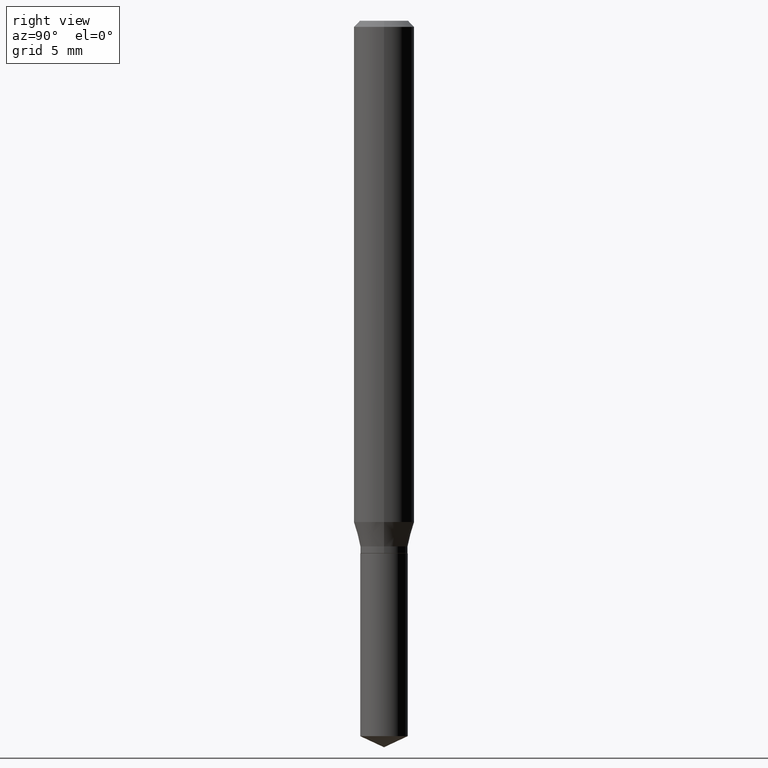
[diagram: clean part render]
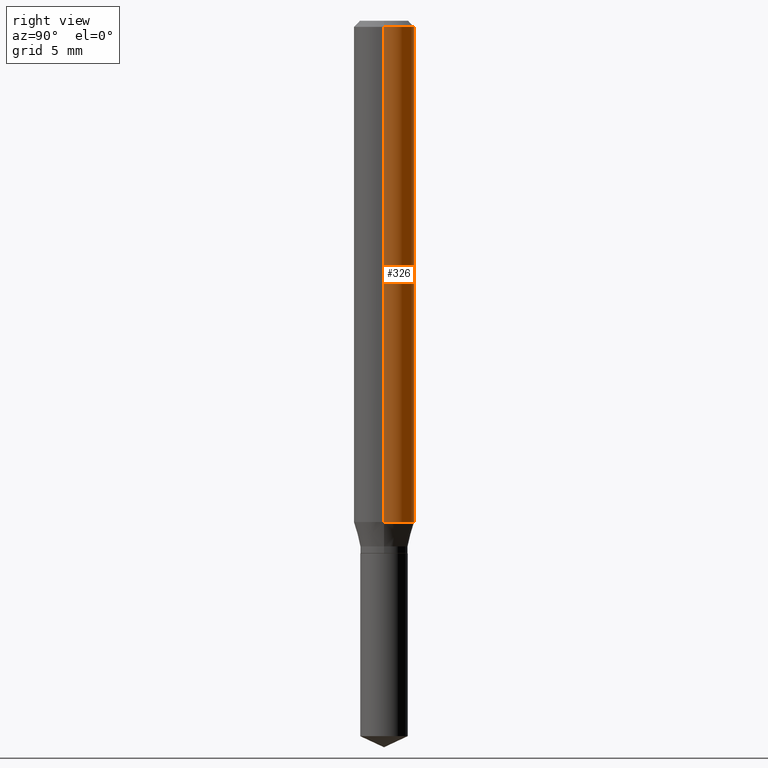
[diagram: same view with one face highlighted and labeled with its STEP entity id]
A machine part, right view. The second image highlights one B-rep face of the part: STEP entity #326.
In plain terms, the highlighted cylindrical surface (edge-blend (fillet) strip) has radius 1.5875 mm, axis along (-0, 0, 1).
Its self-contained STEP definition (entity closure, byte-faithful):
#3 = DIRECTION ( 'NONE',  ( -2.445468806185136877E-29, 3.491481338843145188E-15, 1.000000000000000000 ) ) ;
#15 = DIRECTION ( 'NONE',  ( 1.000000000000000000, -6.982962677686266711E-15, 0.000000000000000000 ) ) ;
#19 = CARTESIAN_POINT ( 'NONE',  ( 3.056836007731442729E-31, -4.364351673553962300E-17, -0.01250000000000008916 ) ) ;
#21 = ORIENTED_EDGE ( 'NONE', *, *, #423, .F. ) ;
#29 = AXIS2_PLACEMENT_3D ( 'NONE', #19, #131, #15 ) ;
#57 = CARTESIAN_POINT ( 'NONE',  ( 0.06250000000000000000, -4.800786840909313294E-16, -0.01250000000000008916 ) ) ;
#64 = CIRCLE ( 'NONE', #29, 0.06250000000000000000 ) ;
#78 = DIRECTION ( 'NONE',  ( -2.445468806185136877E-29, 3.491481338843145188E-15, 1.000000000000000000 ) ) ;
#83 = DIRECTION ( 'NONE',  ( -2.445468806185136597E-29, 3.491481338843145583E-15, 1.000000000000000000 ) ) ;
#87 = CARTESIAN_POINT ( 'NONE',  ( -0.06250000000000000000, -1.384429793226810224E-15, -0.01250000000000008916 ) ) ;
#92 = VECTOR ( 'NONE', #3, 39.37007874015748143 ) ;
#102 = ORIENTED_EDGE ( 'NONE', *, *, #487, .F. ) ;
#126 = ORIENTED_EDGE ( 'NONE', *, *, #490, .T. ) ;
#131 = DIRECTION ( 'NONE',  ( -2.445468806185136597E-29, 3.491481338843145583E-15, 1.000000000000000000 ) ) ;
#148 = CARTESIAN_POINT ( 'NONE',  ( -0.06250000000000012490, -3.169305279568144687E-15, -1.034917314097819840 ) ) ;
#224 = DIRECTION ( 'NONE',  ( 1.000000000000000000, -6.982962677686264344E-15, 0.000000000000000000 ) ) ;
#229 = LINE ( 'NONE', #233, #294 ) ;
#233 = CARTESIAN_POINT ( 'NONE',  ( 0.06250000000000006939, -4.364351673553921624E-16, 3.047610484872463374E-30 ) ) ;
#234 = DIRECTION ( 'NONE',  ( 1.000000000000000000, -6.982962677686266711E-15, 4.876176775795935793E-29 ) ) ;
#251 = VERTEX_POINT ( 'NONE', #87 ) ;
#254 = VERTEX_POINT ( 'NONE', #384 ) ;
#267 = CARTESIAN_POINT ( 'NONE',  ( 2.530858008607123662E-29, -3.613394489418208092E-15, -1.034917314097819840 ) ) ;
#294 = VECTOR ( 'NONE', #78, 39.37007874015748143 ) ;
#307 = AXIS2_PLACEMENT_3D ( 'NONE', #456, #83, #234 ) ;
#326 = ADVANCED_FACE ( 'NONE', ( #460 ), #411, .T. ) ;
#328 = EDGE_LOOP ( 'NONE', ( #126, #394, #21, #102 ) ) ;
#337 = AXIS2_PLACEMENT_3D ( 'NONE', #267, #339, #224 ) ;
#339 = DIRECTION ( 'NONE',  ( -2.445468806185136597E-29, 3.491481338843145583E-15, 1.000000000000000000 ) ) ;
#353 = CIRCLE ( 'NONE', #337, 0.06250000000000012490 ) ;
#384 = CARTESIAN_POINT ( 'NONE',  ( 0.06250000000000012490, -4.049829656773600550E-15, -1.034917314097819840 ) ) ;
#394 = ORIENTED_EDGE ( 'NONE', *, *, #458, .T. ) ;
#402 = LINE ( 'NONE', #445, #92 ) ;
#411 = CYLINDRICAL_SURFACE ( 'NONE', #307, 0.06250000000000006939 ) ;
#423 = EDGE_CURVE ( 'NONE', #432, #251, #64, .T. ) ;
#432 = VERTEX_POINT ( 'NONE', #57 ) ;
#445 = CARTESIAN_POINT ( 'NONE',  ( -0.06250000000000006939, 4.440892098500631092E-16, -3.074334431409319267E-30 ) ) ;
#456 = CARTESIAN_POINT ( 'NONE',  ( 0.000000000000000000, 0.000000000000000000, 0.000000000000000000 ) ) ;
#458 = EDGE_CURVE ( 'NONE', #466, #251, #402, .T. ) ;
#460 = FACE_OUTER_BOUND ( 'NONE', #328, .T. ) ;
#466 = VERTEX_POINT ( 'NONE', #148 ) ;
#487 = EDGE_CURVE ( 'NONE', #254, #432, #229, .T. ) ;
#490 = EDGE_CURVE ( 'NONE', #254, #466, #353, .T. ) ;